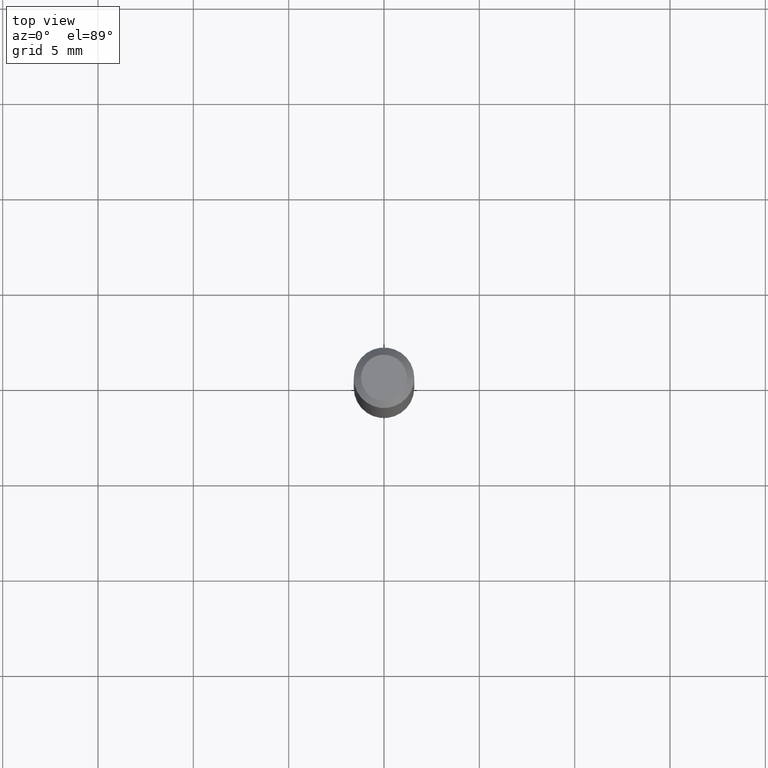
[diagram: clean part render]
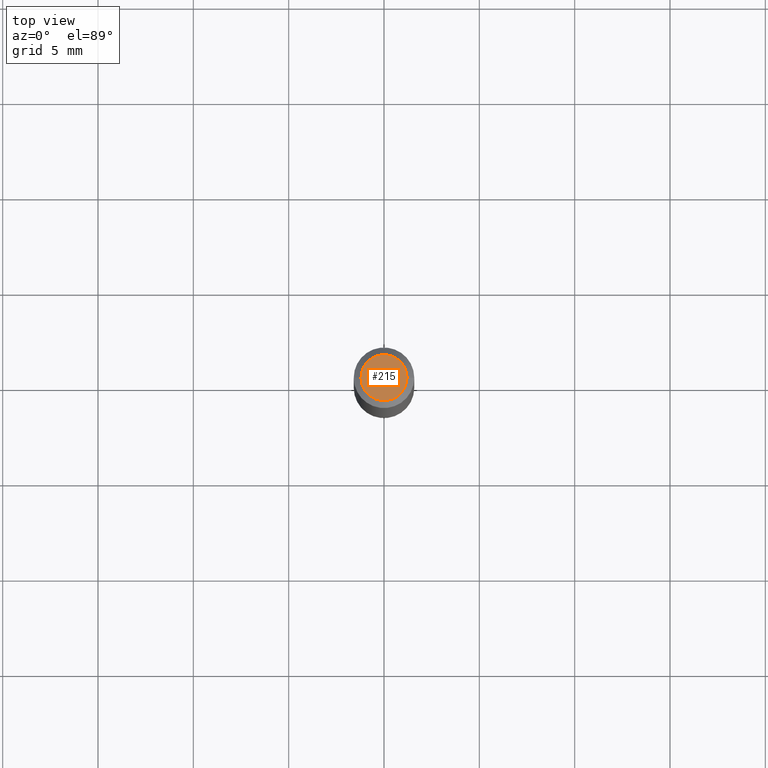
[diagram: same view with one face highlighted and labeled with its STEP entity id]
A machine part, top view. The second image highlights one B-rep face of the part: STEP entity #215.
In plain terms, the highlighted planar face has unit normal (0, -0, -1).
Its self-contained STEP definition (entity closure, byte-faithful):
#10 = DIRECTION ( 'NONE',  ( 1.000000000000000000, -6.982962677686267499E-15, 4.852736867747366768E-29 ) ) ;
#16 = DIRECTION ( 'NONE',  ( 1.000000000000000000, -6.982962677686267499E-15, 4.852736867747366768E-29 ) ) ;
#44 = CARTESIAN_POINT ( 'NONE',  ( -5.723698685194923234E-45, 8.171924785126947293E-31, 2.340532281875119882E-16 ) ) ;
#50 = AXIS2_PLACEMENT_3D ( 'NONE', #44, #111, #10 ) ;
#55 = DIRECTION ( 'NONE',  ( -2.445468806185136597E-29, 3.491481338843145583E-15, 1.000000000000000000 ) ) ;
#99 = EDGE_CURVE ( 'NONE', #225, #375, #246, .T. ) ;
#105 = EDGE_CURVE ( 'NONE', #375, #225, #266, .T. ) ;
#111 = DIRECTION ( 'NONE',  ( -2.445468806185136597E-29, 3.491481338843145583E-15, 1.000000000000000000 ) ) ;
#204 = CARTESIAN_POINT ( 'NONE',  ( -0.04749999999999999362, 3.578768372314215436E-16, 2.340532281875096216E-16 ) ) ;
#215 = ADVANCED_FACE ( 'NONE', ( #260 ), #224, .F. ) ;
#224 = PLANE ( 'NONE',  #361 ) ;
#225 = VERTEX_POINT ( 'NONE', #204 ) ;
#246 = CIRCLE ( 'NONE', #50, 0.04749999999999999362 ) ;
#260 = FACE_OUTER_BOUND ( 'NONE', #325, .T. ) ;
#266 = CIRCLE ( 'NONE', #461, 0.04749999999999999362 ) ;
#278 = CARTESIAN_POINT ( 'NONE',  ( 3.316907271900976096E-16, 0.04749999999999999362, -4.881874950129340235E-17 ) ) ;
#293 = CARTESIAN_POINT ( 'NONE',  ( 0.04749999999999999362, -4.035134999187574186E-16, 2.340532281875146013E-16 ) ) ;
#325 = EDGE_LOOP ( 'NONE', ( #387, #377 ) ) ;
#345 = DIRECTION ( 'NONE',  ( -1.000000000000000000, 6.982962677686265922E-15, -4.876176775795935793E-29 ) ) ;
#347 = DIRECTION ( 'NONE',  ( 2.438088387897960049E-29, -3.491481338843145188E-15, -1.000000000000000000 ) ) ;
#361 = AXIS2_PLACEMENT_3D ( 'NONE', #278, #347, #345 ) ;
#367 = CARTESIAN_POINT ( 'NONE',  ( -5.723698685194923234E-45, 8.171924785126947293E-31, 2.340532281875119882E-16 ) ) ;
#375 = VERTEX_POINT ( 'NONE', #293 ) ;
#377 = ORIENTED_EDGE ( 'NONE', *, *, #105, .T. ) ;
#387 = ORIENTED_EDGE ( 'NONE', *, *, #99, .T. ) ;
#461 = AXIS2_PLACEMENT_3D ( 'NONE', #367, #55, #16 ) ;